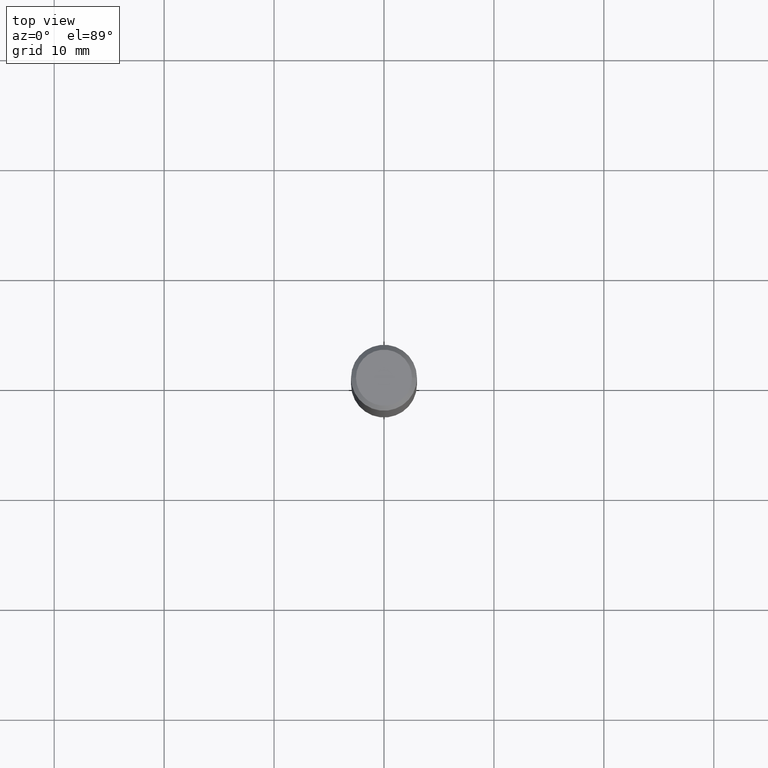
[diagram: clean part render]
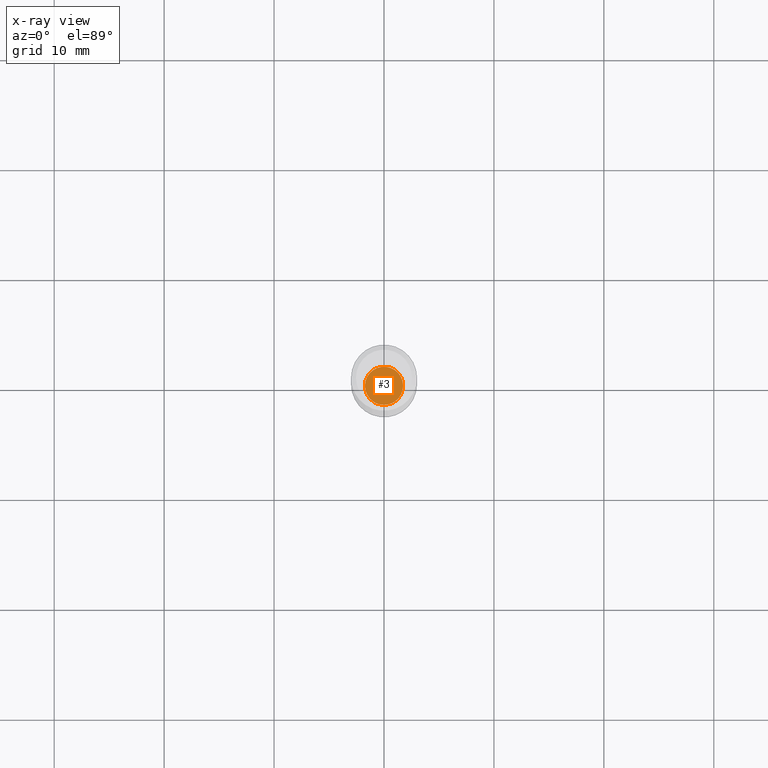
[diagram: x-ray — body ghosted, one internal face saturated and labeled with its STEP entity id]
A machine part, top view, then the same camera in x-ray: the body is ghosted and one INTERNAL B-rep face — a face not visible from any outside direction — is saturated and labeled: STEP entity #3.
In plain terms, the highlighted planar face has unit normal (-0, 0, 1).
Its self-contained STEP definition (entity closure, byte-faithful):
#3 = ADVANCED_FACE ( 'NONE', ( #56 ), #136, .F. ) ;
#56 = FACE_OUTER_BOUND ( 'NONE', #93, .T. ) ;
#62 = EDGE_CURVE ( 'NONE', #457, #252, #214, .T. ) ;
#63 = DIRECTION ( 'NONE',  ( 1.000000000000000000, -6.982962677686265922E-15, 4.876176775795935793E-29 ) ) ;
#75 = CIRCLE ( 'NONE', #269, 0.06840000000000000246 ) ;
#80 = DIRECTION ( 'NONE',  ( -2.445468806185136597E-29, 3.491481338843145583E-15, 1.000000000000000000 ) ) ;
#93 = EDGE_LOOP ( 'NONE', ( #114, #275 ) ) ;
#114 = ORIENTED_EDGE ( 'NONE', *, *, #62, .F. ) ;
#118 = DIRECTION ( 'NONE',  ( 1.000000000000000000, -6.982962677686273810E-15, 0.000000000000000000 ) ) ;
#127 = AXIS2_PLACEMENT_3D ( 'NONE', #253, #147, #225 ) ;
#136 = PLANE ( 'NONE',  #300 ) ;
#147 = DIRECTION ( 'NONE',  ( -2.445468806185136597E-29, 3.491481338843145583E-15, 1.000000000000000000 ) ) ;
#152 = CARTESIAN_POINT ( 'NONE',  ( 4.138955954468343780E-29, -5.909332165992023872E-15, -1.692500000000000115 ) ) ;
#158 = CARTESIAN_POINT ( 'NONE',  ( -0.06840000000000000246, -5.420671707558004028E-15, -1.692500000000000115 ) ) ;
#193 = EDGE_CURVE ( 'NONE', #252, #457, #75, .T. ) ;
#214 = CIRCLE ( 'NONE', #127, 0.06840000000000000246 ) ;
#225 = DIRECTION ( 'NONE',  ( 1.000000000000000000, -6.982962677686273810E-15, 0.000000000000000000 ) ) ;
#241 = CARTESIAN_POINT ( 'NONE',  ( 0.06840000000000000246, -6.386966813145765392E-15, -1.692500000000000115 ) ) ;
#252 = VERTEX_POINT ( 'NONE', #158 ) ;
#253 = CARTESIAN_POINT ( 'NONE',  ( 4.138955954468343780E-29, -5.909332165992023872E-15, -1.692500000000000115 ) ) ;
#269 = AXIS2_PLACEMENT_3D ( 'NONE', #152, #80, #118 ) ;
#275 = ORIENTED_EDGE ( 'NONE', *, *, #193, .F. ) ;
#286 = CARTESIAN_POINT ( 'NONE',  ( 4.138955954468343780E-29, -5.909332165992023872E-15, -1.692500000000000115 ) ) ;
#300 = AXIS2_PLACEMENT_3D ( 'NONE', #286, #351, #63 ) ;
#351 = DIRECTION ( 'NONE',  ( -2.438088387897960049E-29, 3.491481338843145188E-15, 1.000000000000000000 ) ) ;
#457 = VERTEX_POINT ( 'NONE', #241 ) ;